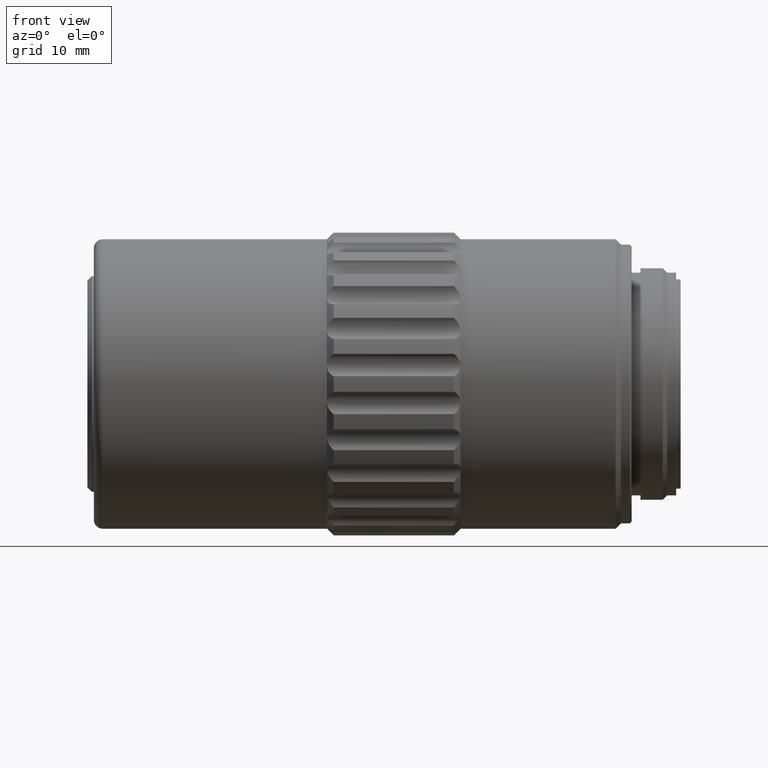
[diagram: clean part render]
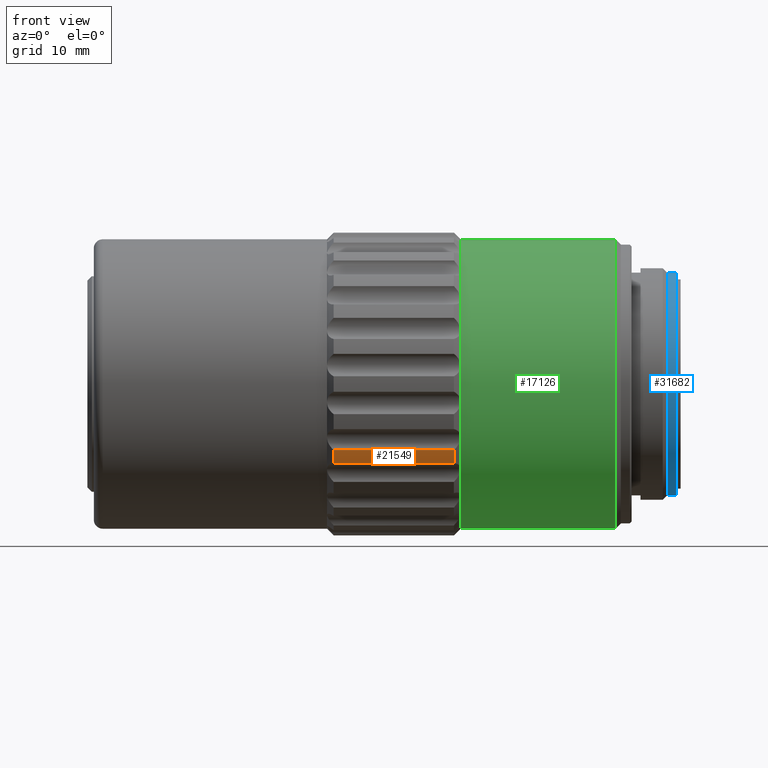
[diagram: same view with three faces highlighted in distinct colors, each labeled with its STEP entity id]
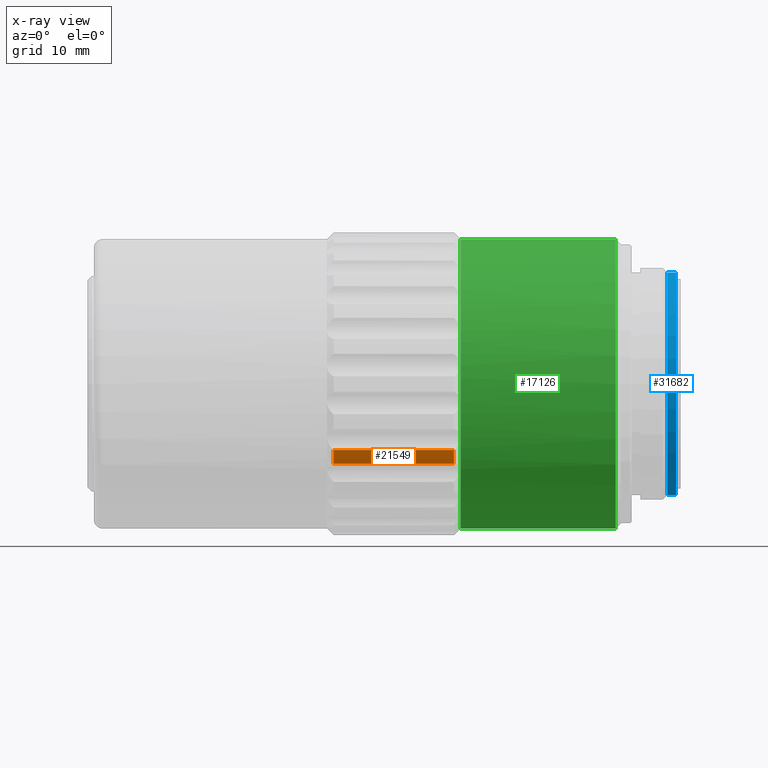
[diagram: x-ray of the same camera — body ghosted, the three highlighted faces saturated]
A machine part, front view with three faces highlighted in distinct colors.
The next image is the same camera in x-ray (body ghosted, the three faces saturated) — at least one of them is partly hidden behind the body in this view.
Their STEP definitions:

[orange] entity #21549 — the highlighted cylindrical surface (partial cylindrical patch) has radius 17 mm, axis along (-1, -0, -0).
#20 = CIRCLE ( 'NONE', #18442, 17.00000000000000000 ) ;
#229 = VERTEX_POINT ( 'NONE', #4239 ) ;
#1322 = CARTESIAN_POINT ( 'NONE',  ( 61.54999999999999716, 0.000000000000000000, 0.000000000000000000 ) ) ;
#3246 = DIRECTION ( 'NONE',  ( -1.000000000000000000, -0.000000000000000000, -0.000000000000000000 ) ) ;
#3382 = VERTEX_POINT ( 'NONE', #25865 ) ;
#4239 = CARTESIAN_POINT ( 'NONE',  ( 61.54999999999999716, -15.29433460226510988, -7.421814405787597657 ) ) ;
#4805 = LINE ( 'NONE', #17827, #10530 ) ;
#5487 = EDGE_LOOP ( 'NONE', ( #19450, #24261, #31738, #22663 ) ) ;
#5780 = CARTESIAN_POINT ( 'NONE',  ( 78.99999999999998579, -15.29433460226510988, -7.421814405787597657 ) ) ;
#9837 = CARTESIAN_POINT ( 'NONE',  ( 61.54999999999999716, -14.46155945196771242, -8.936626780682070503 ) ) ;
#10527 = AXIS2_PLACEMENT_3D ( 'NONE', #12780, #25132, #25300 ) ;
#10530 = VECTOR ( 'NONE', #22441, 1000.000000000000000 ) ;
#12131 = FACE_OUTER_BOUND ( 'NONE', #5487, .T. ) ;
#12780 = CARTESIAN_POINT ( 'NONE',  ( 33.89999999999999858, 0.000000000000000000, 0.000000000000000000 ) ) ;
#15103 = EDGE_CURVE ( 'NONE', #23758, #29409, #4805, .T. ) ;
#16004 = VECTOR ( 'NONE', #28358, 1000.000000000000000 ) ;
#17827 = CARTESIAN_POINT ( 'NONE',  ( 78.99999999999998579, -14.46155945196771242, -8.936626780682070503 ) ) ;
#18236 = EDGE_CURVE ( 'NONE', #3382, #229, #25714, .T. ) ;
#18410 = CARTESIAN_POINT ( 'NONE',  ( 75.04999999999999716, 0.000000000000000000, 0.000000000000000000 ) ) ;
#18442 = AXIS2_PLACEMENT_3D ( 'NONE', #1322, #23731, #21732 ) ;
#18653 = CIRCLE ( 'NONE', #27577, 17.00000000000000000 ) ;
#19450 = ORIENTED_EDGE ( 'NONE', *, *, #21858, .T. ) ;
#21549 = ADVANCED_FACE ( 'NONE', ( #12131 ), #30401, .T. ) ;
#21732 = DIRECTION ( 'NONE',  ( 0.000000000000000000, 0.000000000000000000, -1.000000000000000000 ) ) ;
#21858 = EDGE_CURVE ( 'NONE', #229, #23758, #20, .T. ) ;
#22441 = DIRECTION ( 'NONE',  ( 1.000000000000000000, -0.000000000000000000, -0.000000000000000000 ) ) ;
#22663 = ORIENTED_EDGE ( 'NONE', *, *, #18236, .T. ) ;
#22696 = DIRECTION ( 'NONE',  ( 0.000000000000000000, 0.000000000000000000, 1.000000000000000000 ) ) ;
#23731 = DIRECTION ( 'NONE',  ( 1.000000000000000000, 0.000000000000000000, 0.000000000000000000 ) ) ;
#23758 = VERTEX_POINT ( 'NONE', #9837 ) ;
#24261 = ORIENTED_EDGE ( 'NONE', *, *, #15103, .T. ) ;
#25132 = DIRECTION ( 'NONE',  ( -1.000000000000000000, -0.000000000000000000, -0.000000000000000000 ) ) ;
#25300 = DIRECTION ( 'NONE',  ( 0.000000000000000000, 0.000000000000000000, 1.000000000000000000 ) ) ;
#25714 = LINE ( 'NONE', #5780, #16004 ) ;
#25865 = CARTESIAN_POINT ( 'NONE',  ( 75.04999999999999716, -15.29433460226510810, -7.421814405787594993 ) ) ;
#26285 = EDGE_CURVE ( 'NONE', #29409, #3382, #18653, .T. ) ;
#26647 = CARTESIAN_POINT ( 'NONE',  ( 75.04999999999999716, -14.46155945196769110, -8.936626780682068727 ) ) ;
#27577 = AXIS2_PLACEMENT_3D ( 'NONE', #18410, #3246, #22696 ) ;
#28358 = DIRECTION ( 'NONE',  ( -1.000000000000000000, 0.000000000000000000, 0.000000000000000000 ) ) ;
#29409 = VERTEX_POINT ( 'NONE', #26647 ) ;
#30401 = CYLINDRICAL_SURFACE ( 'NONE', #10527, 17.00000000000000000 ) ;
#31738 = ORIENTED_EDGE ( 'NONE', *, *, #26285, .T. ) ;

[blue] entity #31682 — the highlighted cylindrical surface (partial cylindrical patch) has radius 12.5 mm, axis along (-1, -0, -0).
#2021 = CYLINDRICAL_SURFACE ( 'NONE', #18429, 12.50000000000000000 ) ;
#2191 = VERTEX_POINT ( 'NONE', #22932 ) ;
#2846 = LINE ( 'NONE', #20802, #27358 ) ;
#3379 = VERTEX_POINT ( 'NONE', #15002 ) ;
#4195 = CIRCLE ( 'NONE', #32082, 12.50000000000000000 ) ;
#4812 = FACE_OUTER_BOUND ( 'NONE', #7630, .T. ) ;
#5779 = AXIS2_PLACEMENT_3D ( 'NONE', #28973, #6397, #8316 ) ;
#6397 = DIRECTION ( 'NONE',  ( -1.000000000000000000, -0.000000000000000000, -0.000000000000000000 ) ) ;
#6576 = DIRECTION ( 'NONE',  ( 0.000000000000000000, 0.000000000000000000, 1.000000000000000000 ) ) ;
#6958 = CARTESIAN_POINT ( 'NONE',  ( 33.89999999999999858, 0.000000000000000000, 0.000000000000000000 ) ) ;
#7630 = EDGE_LOOP ( 'NONE', ( #32157, #8164, #9813, #18040 ) ) ;
#8164 = ORIENTED_EDGE ( 'NONE', *, *, #31429, .T. ) ;
#8316 = DIRECTION ( 'NONE',  ( 0.000000000000000000, 0.000000000000000000, 1.000000000000000000 ) ) ;
#9267 = DIRECTION ( 'NONE',  ( 0.000000000000000000, 0.000000000000000000, 1.000000000000000000 ) ) ;
#9717 = CARTESIAN_POINT ( 'NONE',  ( 99.99999999999998579, 1.530808498934191521E-15, -12.50000000000000000 ) ) ;
#9813 = ORIENTED_EDGE ( 'NONE', *, *, #29889, .T. ) ;
#10290 = DIRECTION ( 'NONE',  ( -1.000000000000000000, -0.000000000000000000, -0.000000000000000000 ) ) ;
#12110 = CARTESIAN_POINT ( 'NONE',  ( 33.89999999999999858, 0.000000000000000000, 12.50000000000000000 ) ) ;
#14194 = CIRCLE ( 'NONE', #5779, 12.50000000000000000 ) ;
#14574 = LINE ( 'NONE', #12110, #18399 ) ;
#15002 = CARTESIAN_POINT ( 'NONE',  ( 98.99999999999998579, 0.000000000000000000, 12.50000000000000000 ) ) ;
#16474 = DIRECTION ( 'NONE',  ( -1.000000000000000000, -0.000000000000000000, -0.000000000000000000 ) ) ;
#18040 = ORIENTED_EDGE ( 'NONE', *, *, #21868, .F. ) ;
#18399 = VECTOR ( 'NONE', #10290, 1000.000000000000000 ) ;
#18429 = AXIS2_PLACEMENT_3D ( 'NONE', #6958, #32466, #9267 ) ;
#20802 = CARTESIAN_POINT ( 'NONE',  ( 33.89999999999999858, 1.530808498934191521E-15, -12.50000000000000000 ) ) ;
#21059 = EDGE_CURVE ( 'NONE', #25255, #2191, #2846, .T. ) ;
#21868 = EDGE_CURVE ( 'NONE', #2191, #3379, #4195, .T. ) ;
#22932 = CARTESIAN_POINT ( 'NONE',  ( 98.99999999999998579, 1.530808498934191521E-15, -12.50000000000000000 ) ) ;
#25255 = VERTEX_POINT ( 'NONE', #9717 ) ;
#27358 = VECTOR ( 'NONE', #28220, 1000.000000000000000 ) ;
#28220 = DIRECTION ( 'NONE',  ( -1.000000000000000000, -0.000000000000000000, -0.000000000000000000 ) ) ;
#28973 = CARTESIAN_POINT ( 'NONE',  ( 99.99999999999998579, 0.000000000000000000, 0.000000000000000000 ) ) ;
#29153 = CARTESIAN_POINT ( 'NONE',  ( 98.99999999999998579, 0.000000000000000000, 0.000000000000000000 ) ) ;
#29889 = EDGE_CURVE ( 'NONE', #32406, #3379, #14574, .T. ) ;
#30434 = CARTESIAN_POINT ( 'NONE',  ( 99.99999999999998579, 0.000000000000000000, 12.50000000000000000 ) ) ;
#31429 = EDGE_CURVE ( 'NONE', #25255, #32406, #14194, .T. ) ;
#31682 = ADVANCED_FACE ( 'NONE', ( #4812 ), #2021, .T. ) ;
#32082 = AXIS2_PLACEMENT_3D ( 'NONE', #29153, #16474, #6576 ) ;
#32157 = ORIENTED_EDGE ( 'NONE', *, *, #21059, .F. ) ;
#32406 = VERTEX_POINT ( 'NONE', #30434 ) ;
#32466 = DIRECTION ( 'NONE',  ( -1.000000000000000000, -0.000000000000000000, -0.000000000000000000 ) ) ;

[green] entity #17126 — the highlighted cylindrical surface (partial cylindrical patch) has radius 16.25 mm, axis along (-1, -0, -0).
#186 = DIRECTION ( 'NONE',  ( -1.000000000000000000, -0.000000000000000000, -0.000000000000000000 ) ) ;
#223 = VECTOR ( 'NONE', #22924, 1000.000000000000000 ) ;
#594 = CARTESIAN_POINT ( 'NONE',  ( 75.79999999999999716, 0.000000000000000000, 0.000000000000000000 ) ) ;
#886 = AXIS2_PLACEMENT_3D ( 'NONE', #22912, #186, #22749 ) ;
#897 = EDGE_CURVE ( 'NONE', #26869, #6168, #3602, .T. ) ;
#1041 = DIRECTION ( 'NONE',  ( -1.000000000000000000, -0.000000000000000000, -0.000000000000000000 ) ) ;
#1466 = DIRECTION ( 'NONE',  ( -1.000000000000000000, -0.000000000000000000, -0.000000000000000000 ) ) ;
#2092 = DIRECTION ( 'NONE',  ( -1.000000000000000000, -0.000000000000000000, -0.000000000000000000 ) ) ;
#2231 = VERTEX_POINT ( 'NONE', #13215 ) ;
#2384 = ORIENTED_EDGE ( 'NONE', *, *, #11380, .T. ) ;
#2570 = VECTOR ( 'NONE', #19682, 1000.000000000000000 ) ;
#2647 = AXIS2_PLACEMENT_3D ( 'NONE', #5681, #20679, #17887 ) ;
#2659 = LINE ( 'NONE', #22762, #223 ) ;
#2842 = DIRECTION ( 'NONE',  ( 0.000000000000000000, 0.000000000000000000, 1.000000000000000000 ) ) ;
#3589 = CARTESIAN_POINT ( 'NONE',  ( 93.20000000000000284, 0.000000000000000000, 0.000000000000000000 ) ) ;
#3602 = CIRCLE ( 'NONE', #27804, 16.25000000000000000 ) ;
#3662 = CARTESIAN_POINT ( 'NONE',  ( 75.79999999999999716, 0.000000000000000000, 0.000000000000000000 ) ) ;
#3700 = DIRECTION ( 'NONE',  ( -1.000000000000000000, -0.000000000000000000, -0.000000000000000000 ) ) ;
#3938 = VERTEX_POINT ( 'NONE', #16825 ) ;
#4549 = CARTESIAN_POINT ( 'NONE',  ( 75.79999999999999716, 0.000000000000000000, 0.000000000000000000 ) ) ;
#4755 = CARTESIAN_POINT ( 'NONE',  ( 75.79999999999999716, 0.000000000000000000, 0.000000000000000000 ) ) ;
#4806 = CIRCLE ( 'NONE', #21143, 16.25000000000000000 ) ;
#5022 = DIRECTION ( 'NONE',  ( 0.000000000000000000, 0.000000000000000000, 1.000000000000000000 ) ) ;
#5330 = CARTESIAN_POINT ( 'NONE',  ( 75.79999999999999716, -6.918913487932422335, 14.70343960257281957 ) ) ;
#5370 = ORIENTED_EDGE ( 'NONE', *, *, #10841, .F. ) ;
#5470 = ORIENTED_EDGE ( 'NONE', *, *, #26665, .F. ) ;
#5552 = CARTESIAN_POINT ( 'NONE',  ( 75.79999999999999716, -15.10886789568408517, -5.982023981126012302 ) ) ;
#5681 = CARTESIAN_POINT ( 'NONE',  ( 75.79999999999999716, 0.000000000000000000, 0.000000000000000000 ) ) ;
#6168 = VERTEX_POINT ( 'NONE', #17597 ) ;
#6258 = EDGE_CURVE ( 'NONE', #9921, #29708, #20862, .T. ) ;
#6771 = CARTESIAN_POINT ( 'NONE',  ( 33.89999999999999858, 0.000000000000000000, 0.000000000000000000 ) ) ;
#6824 = EDGE_CURVE ( 'NONE', #19011, #17393, #29269, .T. ) ;
#7023 = CARTESIAN_POINT ( 'NONE',  ( 75.79999999999999716, -10.35813983341620848, -12.52084019510657598 ) ) ;
#7188 = DIRECTION ( 'NONE',  ( 0.000000000000000000, 0.000000000000000000, 1.000000000000000000 ) ) ;
#7227 = CARTESIAN_POINT ( 'NONE',  ( 93.20000000000000284, 0.000000000000000000, 16.25000000000000000 ) ) ;
#7479 = CIRCLE ( 'NONE', #15918, 16.25000000000000000 ) ;
#7517 = ORIENTED_EDGE ( 'NONE', *, *, #7548, .F. ) ;
#7548 = EDGE_CURVE ( 'NONE', #10728, #15750, #28832, .T. ) ;
#7798 = ORIENTED_EDGE ( 'NONE', *, *, #19270, .F. ) ;
#7846 = CARTESIAN_POINT ( 'NONE',  ( 75.79999999999999716, 0.000000000000000000, 0.000000000000000000 ) ) ;
#8231 = DIRECTION ( 'NONE',  ( 0.000000000000000000, 0.000000000000000000, 1.000000000000000000 ) ) ;
#8397 = CARTESIAN_POINT ( 'NONE',  ( 75.79999999999999716, 0.000000000000000000, 0.000000000000000000 ) ) ;
#8405 = CIRCLE ( 'NONE', #13671, 16.25000000000000000 ) ;
#8422 = CIRCLE ( 'NONE', #18412, 16.25000000000000000 ) ;
#8451 = CARTESIAN_POINT ( 'NONE',  ( 75.79999999999999716, 0.000000000000000000, 0.000000000000000000 ) ) ;
#9158 = ORIENTED_EDGE ( 'NONE', *, *, #9903, .F. ) ;
#9539 = ORIENTED_EDGE ( 'NONE', *, *, #6258, .F. ) ;
#9903 = EDGE_CURVE ( 'NONE', #2231, #28101, #16279, .T. ) ;
#9921 = VERTEX_POINT ( 'NONE', #18614 ) ;
#10728 = VERTEX_POINT ( 'NONE', #32026 ) ;
#10749 = AXIS2_PLACEMENT_3D ( 'NONE', #4755, #29809, #21901 ) ;
#10841 = EDGE_CURVE ( 'NONE', #14258, #2231, #18901, .T. ) ;
#11283 = ORIENTED_EDGE ( 'NONE', *, *, #18223, .F. ) ;
#11380 = EDGE_CURVE ( 'NONE', #27945, #13633, #4806, .T. ) ;
#11387 = AXIS2_PLACEMENT_3D ( 'NONE', #594, #30722, #5022 ) ;
#11722 = FACE_OUTER_BOUND ( 'NONE', #14396, .T. ) ;
#11883 = CARTESIAN_POINT ( 'NONE',  ( 75.79999999999999716, -15.10886789568408162, 5.982023981126022960 ) ) ;
#12187 = EDGE_CURVE ( 'NONE', #6168, #19011, #23242, .T. ) ;
#12617 = ORIENTED_EDGE ( 'NONE', *, *, #22920, .F. ) ;
#13215 = CARTESIAN_POINT ( 'NONE',  ( 75.79999999999999716, -3.044946362018025265, 15.96216782434119175 ) ) ;
#13250 = EDGE_CURVE ( 'NONE', #29708, #16783, #7479, .T. ) ;
#13595 = ORIENTED_EDGE ( 'NONE', *, *, #897, .F. ) ;
#13633 = VERTEX_POINT ( 'NONE', #7227 ) ;
#13671 = AXIS2_PLACEMENT_3D ( 'NONE', #8451, #17839, #2842 ) ;
#14057 = ORIENTED_EDGE ( 'NONE', *, *, #20653, .F. ) ;
#14066 = DIRECTION ( 'NONE',  ( 0.000000000000000000, 0.000000000000000000, 1.000000000000000000 ) ) ;
#14098 = ORIENTED_EDGE ( 'NONE', *, *, #13250, .F. ) ;
#14258 = VERTEX_POINT ( 'NONE', #5330 ) ;
#14396 = EDGE_LOOP ( 'NONE', ( #11283, #2384, #16530, #9158, #5370, #14057, #7517, #32390, #7798, #5470, #14098, #9539, #12617, #20034, #19205, #13595 ) ) ;
#14591 = DIRECTION ( 'NONE',  ( 0.000000000000000000, 0.000000000000000000, 1.000000000000000000 ) ) ;
#14683 = AXIS2_PLACEMENT_3D ( 'NONE', #18294, #26343, #15980 ) ;
#15077 = CARTESIAN_POINT ( 'NONE',  ( 75.79999999999999716, -10.35813983341620670, 12.52084019510657598 ) ) ;
#15750 = VERTEX_POINT ( 'NONE', #15077 ) ;
#15918 = AXIS2_PLACEMENT_3D ( 'NONE', #7846, #17901, #18391 ) ;
#15980 = DIRECTION ( 'NONE',  ( 0.000000000000000000, 0.000000000000000000, 1.000000000000000000 ) ) ;
#16279 = CIRCLE ( 'NONE', #14683, 16.25000000000000000 ) ;
#16530 = ORIENTED_EDGE ( 'NONE', *, *, #24062, .T. ) ;
#16783 = VERTEX_POINT ( 'NONE', #23194 ) ;
#16793 = AXIS2_PLACEMENT_3D ( 'NONE', #4549, #2092, #7188 ) ;
#16825 = CARTESIAN_POINT ( 'NONE',  ( 75.79999999999999716, -16.12186389636026362, 2.036665045419944420 ) ) ;
#17126 = ADVANCED_FACE ( 'NONE', ( #11722 ), #29350, .T. ) ;
#17256 = AXIS2_PLACEMENT_3D ( 'NONE', #31364, #3700, #14066 ) ;
#17376 = LINE ( 'NONE', #24773, #2570 ) ;
#17393 = VERTEX_POINT ( 'NONE', #7023 ) ;
#17561 = DIRECTION ( 'NONE',  ( -1.000000000000000000, -0.000000000000000000, -0.000000000000000000 ) ) ;
#17597 = CARTESIAN_POINT ( 'NONE',  ( 75.79999999999999716, -3.044946362018029262, -15.96216782434119175 ) ) ;
#17839 = DIRECTION ( 'NONE',  ( -1.000000000000000000, -0.000000000000000000, -0.000000000000000000 ) ) ;
#17887 = DIRECTION ( 'NONE',  ( 0.000000000000000000, 0.000000000000000000, 1.000000000000000000 ) ) ;
#17901 = DIRECTION ( 'NONE',  ( -1.000000000000000000, -0.000000000000000000, -0.000000000000000000 ) ) ;
#18104 = AXIS2_PLACEMENT_3D ( 'NONE', #6771, #28156, #20402 ) ;
#18223 = EDGE_CURVE ( 'NONE', #27945, #26869, #2659, .T. ) ;
#18284 = DIRECTION ( 'NONE',  ( -1.000000000000000000, -0.000000000000000000, -0.000000000000000000 ) ) ;
#18294 = CARTESIAN_POINT ( 'NONE',  ( 75.79999999999999716, 0.000000000000000000, 0.000000000000000000 ) ) ;
#18391 = DIRECTION ( 'NONE',  ( 0.000000000000000000, 0.000000000000000000, 1.000000000000000000 ) ) ;
#18412 = AXIS2_PLACEMENT_3D ( 'NONE', #8397, #18284, #8231 ) ;
#18614 = CARTESIAN_POINT ( 'NONE',  ( 75.79999999999999716, -13.14652615859289497, -9.551510349752689422 ) ) ;
#18670 = DIRECTION ( 'NONE',  ( 0.000000000000000000, 0.000000000000000000, 1.000000000000000000 ) ) ;
#18901 = CIRCLE ( 'NONE', #19406, 16.25000000000000000 ) ;
#18935 = CARTESIAN_POINT ( 'NONE',  ( 75.79999999999999716, 0.000000000000000000, 0.000000000000000000 ) ) ;
#19011 = VERTEX_POINT ( 'NONE', #26556 ) ;
#19025 = AXIS2_PLACEMENT_3D ( 'NONE', #3662, #1041, #18670 ) ;
#19205 = ORIENTED_EDGE ( 'NONE', *, *, #12187, .F. ) ;
#19270 = EDGE_CURVE ( 'NONE', #3938, #21158, #8422, .T. ) ;
#19406 = AXIS2_PLACEMENT_3D ( 'NONE', #20026, #17561, #14591 ) ;
#19682 = DIRECTION ( 'NONE',  ( -1.000000000000000000, -0.000000000000000000, -0.000000000000000000 ) ) ;
#19928 = CARTESIAN_POINT ( 'NONE',  ( 75.79999999999999716, 0.000000000000000000, 16.25000000000000000 ) ) ;
#20026 = CARTESIAN_POINT ( 'NONE',  ( 75.79999999999999716, 0.000000000000000000, 0.000000000000000000 ) ) ;
#20034 = ORIENTED_EDGE ( 'NONE', *, *, #6824, .F. ) ;
#20402 = DIRECTION ( 'NONE',  ( 0.000000000000000000, 0.000000000000000000, 1.000000000000000000 ) ) ;
#20653 = EDGE_CURVE ( 'NONE', #15750, #14258, #25259, .T. ) ;
#20679 = DIRECTION ( 'NONE',  ( -1.000000000000000000, -0.000000000000000000, -0.000000000000000000 ) ) ;
#20862 = CIRCLE ( 'NONE', #11387, 16.25000000000000000 ) ;
#21137 = CARTESIAN_POINT ( 'NONE',  ( 75.79999999999999716, 1.990051048614449313E-15, -16.25000000000000000 ) ) ;
#21143 = AXIS2_PLACEMENT_3D ( 'NONE', #3589, #26156, #31254 ) ;
#21158 = VERTEX_POINT ( 'NONE', #11883 ) ;
#21743 = CARTESIAN_POINT ( 'NONE',  ( 93.20000000000000284, 1.990051048614449313E-15, -16.25000000000000000 ) ) ;
#21901 = DIRECTION ( 'NONE',  ( 0.000000000000000000, 0.000000000000000000, 1.000000000000000000 ) ) ;
#22749 = DIRECTION ( 'NONE',  ( 0.000000000000000000, 0.000000000000000000, 1.000000000000000000 ) ) ;
#22762 = CARTESIAN_POINT ( 'NONE',  ( 33.89999999999999858, 1.990051048614449313E-15, -16.25000000000000000 ) ) ;
#22854 = CIRCLE ( 'NONE', #10749, 16.25000000000000000 ) ;
#22912 = CARTESIAN_POINT ( 'NONE',  ( 75.79999999999999716, 0.000000000000000000, 0.000000000000000000 ) ) ;
#22920 = EDGE_CURVE ( 'NONE', #17393, #9921, #31004, .T. ) ;
#22924 = DIRECTION ( 'NONE',  ( -1.000000000000000000, -0.000000000000000000, -0.000000000000000000 ) ) ;
#23194 = CARTESIAN_POINT ( 'NONE',  ( 75.79999999999999716, -16.12186389636026362, -2.036665045419941311 ) ) ;
#23242 = CIRCLE ( 'NONE', #19025, 16.25000000000000000 ) ;
#23564 = DIRECTION ( 'NONE',  ( 0.000000000000000000, 0.000000000000000000, 1.000000000000000000 ) ) ;
#24062 = EDGE_CURVE ( 'NONE', #13633, #28101, #17376, .T. ) ;
#24773 = CARTESIAN_POINT ( 'NONE',  ( 33.89999999999999858, 0.000000000000000000, 16.25000000000000000 ) ) ;
#25259 = CIRCLE ( 'NONE', #2647, 16.25000000000000000 ) ;
#26156 = DIRECTION ( 'NONE',  ( -1.000000000000000000, -0.000000000000000000, -0.000000000000000000 ) ) ;
#26343 = DIRECTION ( 'NONE',  ( -1.000000000000000000, -0.000000000000000000, -0.000000000000000000 ) ) ;
#26556 = CARTESIAN_POINT ( 'NONE',  ( 75.79999999999999716, -6.918913487932431217, -14.70343960257281424 ) ) ;
#26665 = EDGE_CURVE ( 'NONE', #16783, #3938, #22854, .T. ) ;
#26869 = VERTEX_POINT ( 'NONE', #21137 ) ;
#27804 = AXIS2_PLACEMENT_3D ( 'NONE', #18935, #1466, #23564 ) ;
#27945 = VERTEX_POINT ( 'NONE', #21743 ) ;
#28101 = VERTEX_POINT ( 'NONE', #19928 ) ;
#28156 = DIRECTION ( 'NONE',  ( -1.000000000000000000, -0.000000000000000000, -0.000000000000000000 ) ) ;
#28832 = CIRCLE ( 'NONE', #17256, 16.25000000000000000 ) ;
#29269 = CIRCLE ( 'NONE', #886, 16.25000000000000000 ) ;
#29350 = CYLINDRICAL_SURFACE ( 'NONE', #18104, 16.25000000000000000 ) ;
#29708 = VERTEX_POINT ( 'NONE', #5552 ) ;
#29809 = DIRECTION ( 'NONE',  ( -1.000000000000000000, -0.000000000000000000, -0.000000000000000000 ) ) ;
#30722 = DIRECTION ( 'NONE',  ( -1.000000000000000000, -0.000000000000000000, -0.000000000000000000 ) ) ;
#30780 = EDGE_CURVE ( 'NONE', #21158, #10728, #8405, .T. ) ;
#31004 = CIRCLE ( 'NONE', #16793, 16.25000000000000000 ) ;
#31254 = DIRECTION ( 'NONE',  ( 0.000000000000000000, 0.000000000000000000, 1.000000000000000000 ) ) ;
#31364 = CARTESIAN_POINT ( 'NONE',  ( 75.79999999999999716, 0.000000000000000000, 0.000000000000000000 ) ) ;
#32026 = CARTESIAN_POINT ( 'NONE',  ( 75.79999999999999716, -13.14652615859289320, 9.551510349752691198 ) ) ;
#32390 = ORIENTED_EDGE ( 'NONE', *, *, #30780, .F. ) ;